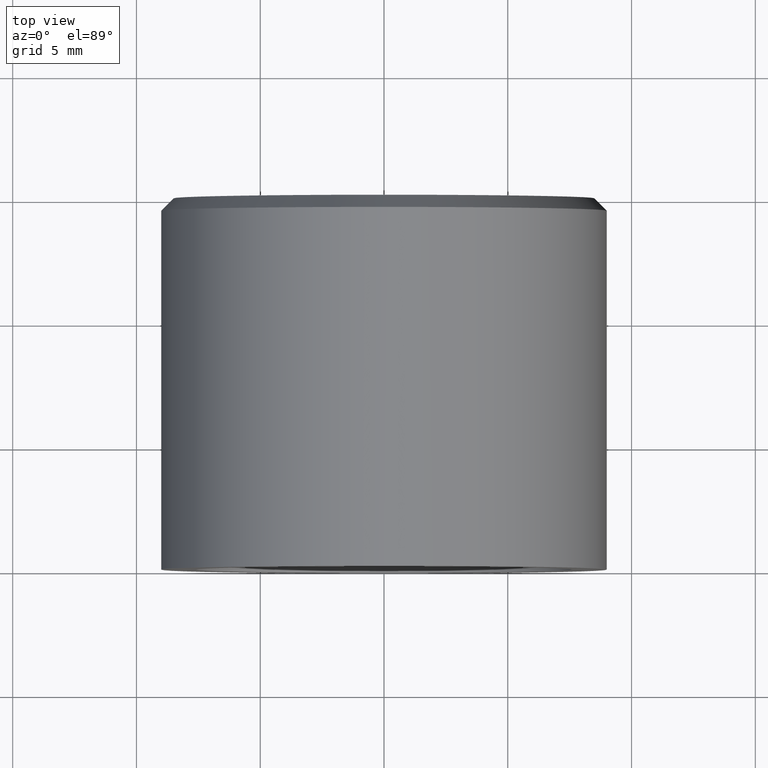
[diagram: clean part render]
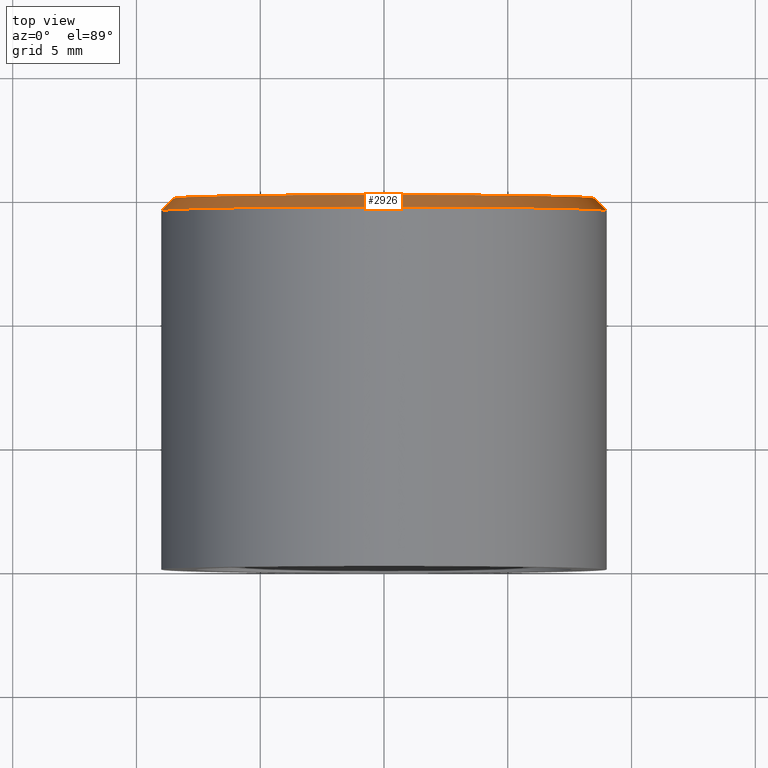
[diagram: same view with one face highlighted and labeled with its STEP entity id]
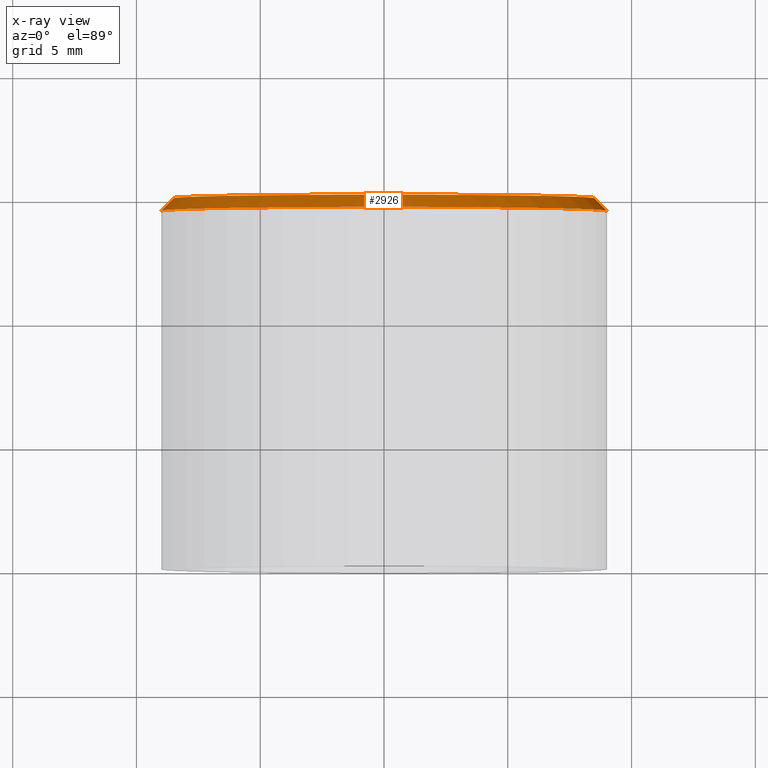
[diagram: x-ray of the same camera — body ghosted, the highlighted face saturated]
A machine part, top view. The second image highlights one B-rep face of the part: STEP entity #2926.
The next image is the same camera in x-ray: the body ghosted, the highlighted face saturated — about 0% of this face is hidden behind the body in this view.
In plain terms, the highlighted conical surface has half-angle 45 deg.
Its self-contained STEP definition (entity closure, byte-faithful):
#155 = DIRECTION ( 'NONE',  ( -1.994889995923048226E-17, 1.000000000000000000, -0.000000000000000000 ) ) ;
#214 = CARTESIAN_POINT ( 'NONE',  ( 8.500000000000000000, 15.00000000000000000, 0.000000000000000000 ) ) ;
#524 = AXIS2_PLACEMENT_3D ( 'NONE', #8921, #9936, #7154 ) ;
#1158 = VERTEX_POINT ( 'NONE', #11757 ) ;
#1236 = CARTESIAN_POINT ( 'NONE',  ( 8.500000000000000000, 15.00000000000000000, 0.000000000000000000 ) ) ;
#1314 = ORIENTED_EDGE ( 'NONE', *, *, #1657, .T. ) ;
#1657 = EDGE_CURVE ( 'NONE', #1158, #2076, #4949, .T. ) ;
#2076 = VERTEX_POINT ( 'NONE', #9296 ) ;
#2434 = EDGE_CURVE ( 'NONE', #6553, #2076, #5885, .T. ) ;
#2895 = DIRECTION ( 'NONE',  ( 1.000000000000000000, 0.000000000000000000, 0.000000000000000000 ) ) ;
#2926 = ADVANCED_FACE ( 'NONE', ( #5079 ), #4306, .T. ) ;
#3527 = VECTOR ( 'NONE', #9991, 1000.000000000000000 ) ;
#4306 = CONICAL_SURFACE ( 'NONE', #11064, 8.500000000000000000, 0.7853981633974447263 ) ;
#4949 = LINE ( 'NONE', #12865, #3527 ) ;
#5079 = FACE_OUTER_BOUND ( 'NONE', #10206, .T. ) ;
#5376 = EDGE_CURVE ( 'NONE', #8139, #6553, #5691, .T. ) ;
#5691 = LINE ( 'NONE', #1236, #11043 ) ;
#5768 = CARTESIAN_POINT ( 'NONE',  ( 9.000000000000000000, 14.49999999999999645, 1.102182119232617714E-15 ) ) ;
#5885 = CIRCLE ( 'NONE', #524, 9.000000000000000000 ) ;
#5940 = DIRECTION ( 'NONE',  ( 1.994889995923048534E-17, -1.000000000000000000, 0.000000000000000000 ) ) ;
#6179 = CARTESIAN_POINT ( 'NONE',  ( -3.440684577439820297E-32, 15.00000000000000000, 0.000000000000000000 ) ) ;
#6317 = DIRECTION ( 'NONE',  ( 1.000000000000000000, 0.000000000000000000, 0.000000000000000000 ) ) ;
#6553 = VERTEX_POINT ( 'NONE', #5768 ) ;
#6846 = ORIENTED_EDGE ( 'NONE', *, *, #11860, .F. ) ;
#7154 = DIRECTION ( 'NONE',  ( 1.000000000000000000, 0.000000000000000000, 0.000000000000000000 ) ) ;
#8139 = VERTEX_POINT ( 'NONE', #214 ) ;
#8921 = CARTESIAN_POINT ( 'NONE',  ( 9.974449979615245753E-18, 14.49999999999999645, 0.000000000000000000 ) ) ;
#9296 = CARTESIAN_POINT ( 'NONE',  ( -9.000000000000000000, 14.49999999999999645, 0.000000000000000000 ) ) ;
#9936 = DIRECTION ( 'NONE',  ( 1.994889995923048534E-17, -1.000000000000000000, 0.000000000000000000 ) ) ;
#9991 = DIRECTION ( 'NONE',  ( -0.7071067811865450192, -0.7071067811865500152, 8.659560562354902043E-17 ) ) ;
#10206 = EDGE_LOOP ( 'NONE', ( #6846, #1314, #12035, #10672 ) ) ;
#10672 = ORIENTED_EDGE ( 'NONE', *, *, #5376, .F. ) ;
#11043 = VECTOR ( 'NONE', #12458, 1000.000000000000000 ) ;
#11064 = AXIS2_PLACEMENT_3D ( 'NONE', #12905, #5940, #2895 ) ;
#11461 = AXIS2_PLACEMENT_3D ( 'NONE', #6179, #155, #6317 ) ;
#11757 = CARTESIAN_POINT ( 'NONE',  ( -8.500000000000000000, 15.00000000000000000, 1.071565949253933927E-15 ) ) ;
#11860 = EDGE_CURVE ( 'NONE', #1158, #8139, #12971, .T. ) ;
#12035 = ORIENTED_EDGE ( 'NONE', *, *, #2434, .F. ) ;
#12458 = DIRECTION ( 'NONE',  ( 0.7071067811865450192, -0.7071067811865500152, 0.000000000000000000 ) ) ;
#12865 = CARTESIAN_POINT ( 'NONE',  ( -8.500000000000000000, 15.00000000000000000, 1.040949779275250140E-15 ) ) ;
#12905 = CARTESIAN_POINT ( 'NONE',  ( -3.102419759293941214E-32, 15.00000000000000000, 0.000000000000000000 ) ) ;
#12971 = CIRCLE ( 'NONE', #11461, 8.500000000000000000 ) ;